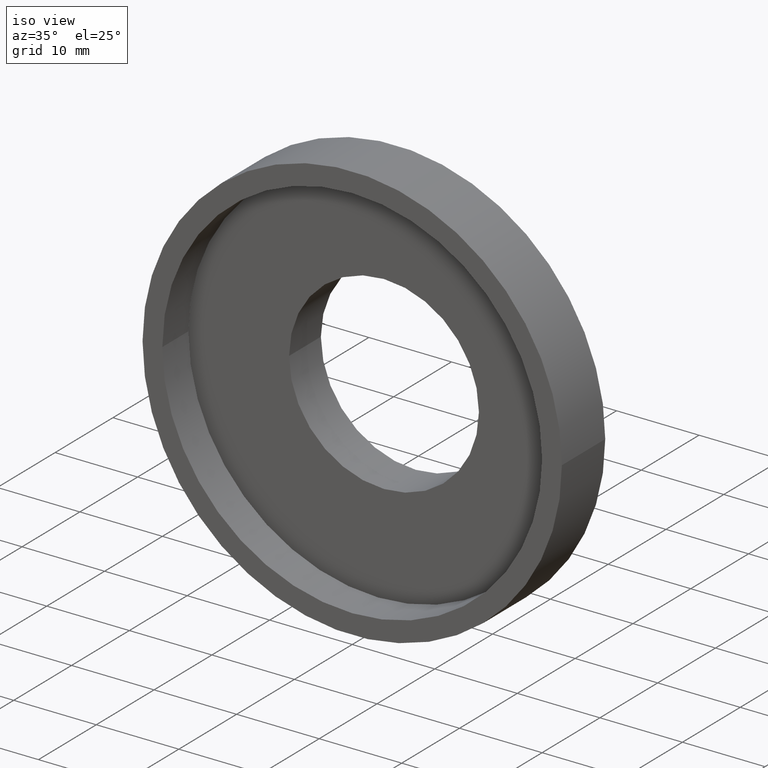
[diagram: clean part render]
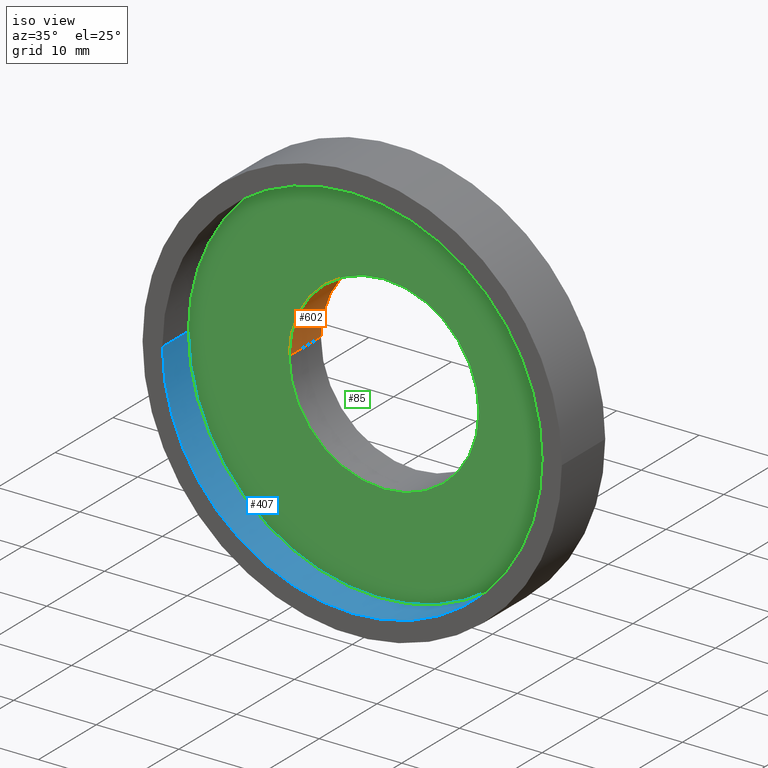
[diagram: same view with three faces highlighted in distinct colors, each labeled with its STEP entity id]
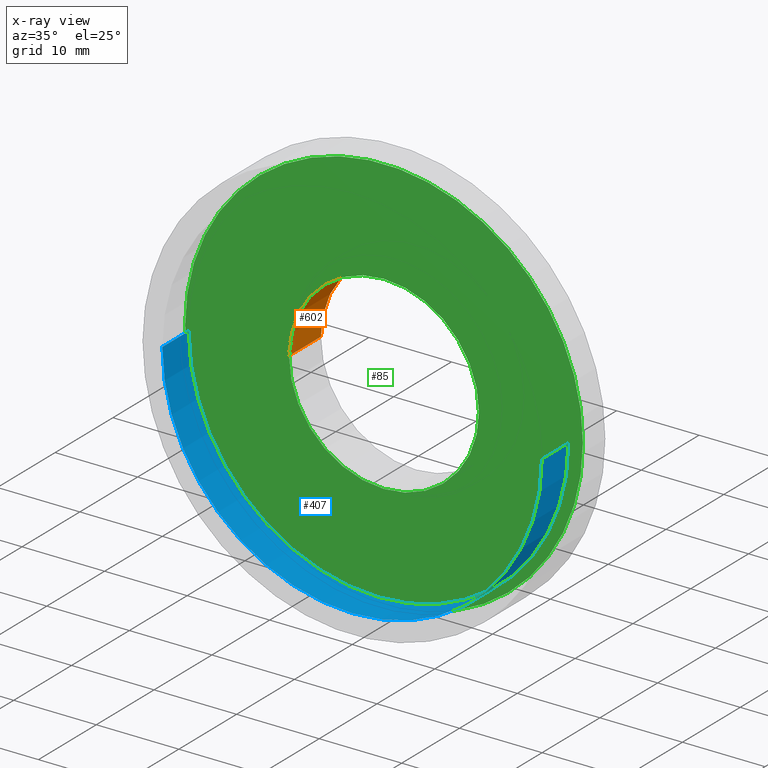
[diagram: x-ray of the same camera — body ghosted, the three highlighted faces saturated]
A machine part, iso view with three faces highlighted in distinct colors.
The next image is the same camera in x-ray (body ghosted, the three faces saturated) — at least one of them is partly hidden behind the body in this view.
Their STEP definitions:

[orange] entity #602 — the highlighted cylindrical surface (partial cylindrical patch) has radius 11.5 mm, axis along (-0, 1, -0).
#2 = CARTESIAN_POINT ( 'NONE',  ( 11.50000000000000000, 16.88601823708207700, 1.408343819019456200E-015 ) ) ;
#9 = EDGE_LOOP ( 'NONE', ( #133, #549, #48, #330 ) ) ;
#48 = ORIENTED_EDGE ( 'NONE', *, *, #95, .T. ) ;
#78 = VECTOR ( 'NONE', #420, 1000.000000000000000 ) ;
#79 = CARTESIAN_POINT ( 'NONE',  ( -11.50000000000000200, 10.99999999999999500, 0.0000000000000000000 ) ) ;
#95 = EDGE_CURVE ( 'NONE', #160, #532, #121, .T. ) ;
#96 = VERTEX_POINT ( 'NONE', #371 ) ;
#121 = LINE ( 'NONE', #417, #78 ) ;
#133 = ORIENTED_EDGE ( 'NONE', *, *, #340, .F. ) ;
#141 = CIRCLE ( 'NONE', #149, 11.50000000000000200 ) ;
#149 = AXIS2_PLACEMENT_3D ( 'NONE', #539, #389, #405 ) ;
#155 = CARTESIAN_POINT ( 'NONE',  ( 0.0000000000000000000, 16.88601823708207700, 0.0000000000000000000 ) ) ;
#160 = VERTEX_POINT ( 'NONE', #181 ) ;
#166 = CYLINDRICAL_SURFACE ( 'NONE', #464, 11.50000000000000000 ) ;
#181 = CARTESIAN_POINT ( 'NONE',  ( -11.49999999999999800, 5.499999999999996400, 0.0000000000000000000 ) ) ;
#230 = EDGE_CURVE ( 'NONE', #160, #96, #237, .T. ) ;
#237 = CIRCLE ( 'NONE', #468, 11.50000000000000000 ) ;
#266 = DIRECTION ( 'NONE',  ( -1.224646799147351000E-016, 1.000000000000000000, -0.0000000000000000000 ) ) ;
#330 = ORIENTED_EDGE ( 'NONE', *, *, #527, .T. ) ;
#331 = DIRECTION ( 'NONE',  ( -1.224646799147351000E-016, 1.000000000000000000, -0.0000000000000000000 ) ) ;
#340 = EDGE_CURVE ( 'NONE', #96, #418, #613, .T. ) ;
#357 = CARTESIAN_POINT ( 'NONE',  ( 1.394385078907593000E-015, 5.499999999999998200, 0.0000000000000000000 ) ) ;
#371 = CARTESIAN_POINT ( 'NONE',  ( 11.50000000000000200, 5.500000000000000000, 1.408343819019456600E-015 ) ) ;
#389 = DIRECTION ( 'NONE',  ( -1.224646799147351000E-016, 1.000000000000000000, -0.0000000000000000000 ) ) ;
#405 = DIRECTION ( 'NONE',  ( -1.000000000000000000, -1.508455196501571200E-016, 0.0000000000000000000 ) ) ;
#414 = VECTOR ( 'NONE', #331, 1000.000000000000000 ) ;
#417 = CARTESIAN_POINT ( 'NONE',  ( -11.50000000000000000, 16.88601823708207700, 0.0000000000000000000 ) ) ;
#418 = VERTEX_POINT ( 'NONE', #589 ) ;
#420 = DIRECTION ( 'NONE',  ( -1.224646799147351000E-016, 1.000000000000000000, -0.0000000000000000000 ) ) ;
#464 = AXIS2_PLACEMENT_3D ( 'NONE', #155, #491, #587 ) ;
#465 = DIRECTION ( 'NONE',  ( -1.000000000000000000, -1.508455196501571400E-016, 0.0000000000000000000 ) ) ;
#468 = AXIS2_PLACEMENT_3D ( 'NONE', #357, #266, #465 ) ;
#491 = DIRECTION ( 'NONE',  ( -1.224646799147351000E-016, 1.000000000000000000, -0.0000000000000000000 ) ) ;
#527 = EDGE_CURVE ( 'NONE', #532, #418, #141, .T. ) ;
#532 = VERTEX_POINT ( 'NONE', #79 ) ;
#539 = CARTESIAN_POINT ( 'NONE',  ( 7.208293393765502500E-016, 10.99999999999999600, 0.0000000000000000000 ) ) ;
#549 = ORIENTED_EDGE ( 'NONE', *, *, #230, .F. ) ;
#572 = FACE_OUTER_BOUND ( 'NONE', #9, .T. ) ;
#587 = DIRECTION ( 'NONE',  ( -1.000000000000000000, 0.0000000000000000000, 0.0000000000000000000 ) ) ;
#589 = CARTESIAN_POINT ( 'NONE',  ( 11.50000000000000200, 10.99999999999999800, 1.408343819019456600E-015 ) ) ;
#602 = ADVANCED_FACE ( 'NONE', ( #572 ), #166, .F. ) ;
#613 = LINE ( 'NONE', #2, #414 ) ;

[blue] entity #407 — the highlighted cylindrical surface (partial cylindrical patch) has radius 23 mm, axis along (-0, 1, -0).
#58 = CARTESIAN_POINT ( 'NONE',  ( 0.0000000000000000000, 16.88601823708207700, 0.0000000000000000000 ) ) ;
#59 = CARTESIAN_POINT ( 'NONE',  ( -23.00000000000000400, 4.499999999999994700, 0.0000000000000000000 ) ) ;
#86 = EDGE_CURVE ( 'NONE', #190, #489, #410, .T. ) ;
#130 = EDGE_CURVE ( 'NONE', #190, #150, #598, .T. ) ;
#135 = CARTESIAN_POINT ( 'NONE',  ( 23.00000000000000000, 16.88601823708208000, 2.816687638038912400E-015 ) ) ;
#142 = ORIENTED_EDGE ( 'NONE', *, *, #86, .F. ) ;
#150 = VERTEX_POINT ( 'NONE', #344 ) ;
#151 = CARTESIAN_POINT ( 'NONE',  ( 1.516849758822328300E-015, 4.499999999999997300, 0.0000000000000000000 ) ) ;
#163 = DIRECTION ( 'NONE',  ( -1.000000000000000000, -1.508455196501571400E-016, 0.0000000000000000000 ) ) ;
#183 = FACE_OUTER_BOUND ( 'NONE', #253, .T. ) ;
#190 = VERTEX_POINT ( 'NONE', #203 ) ;
#203 = CARTESIAN_POINT ( 'NONE',  ( 23.00000000000000000, -6.527593139147072600E-016, 2.816687638038912400E-015 ) ) ;
#222 = LINE ( 'NONE', #603, #366 ) ;
#243 = EDGE_CURVE ( 'NONE', #489, #526, #222, .T. ) ;
#246 = ORIENTED_EDGE ( 'NONE', *, *, #243, .F. ) ;
#253 = EDGE_LOOP ( 'NONE', ( #142, #570, #280, #246 ) ) ;
#279 = DIRECTION ( 'NONE',  ( -1.000000000000000000, -1.224646799147351000E-016, 0.0000000000000000000 ) ) ;
#280 = ORIENTED_EDGE ( 'NONE', *, *, #316, .T. ) ;
#311 = DIRECTION ( 'NONE',  ( -1.224646799147351000E-016, 1.000000000000000000, -0.0000000000000000000 ) ) ;
#316 = EDGE_CURVE ( 'NONE', #150, #526, #543, .T. ) ;
#323 = CARTESIAN_POINT ( 'NONE',  ( 2.067940818438636500E-015, -3.469446951953614200E-015, 0.0000000000000000000 ) ) ;
#329 = AXIS2_PLACEMENT_3D ( 'NONE', #151, #388, #434 ) ;
#344 = CARTESIAN_POINT ( 'NONE',  ( 23.00000000000000400, 4.500000000000000000, 2.816687638038913100E-015 ) ) ;
#366 = VECTOR ( 'NONE', #311, 1000.000000000000000 ) ;
#382 = AXIS2_PLACEMENT_3D ( 'NONE', #58, #482, #163 ) ;
#388 = DIRECTION ( 'NONE',  ( -1.224646799147351000E-016, 1.000000000000000000, -0.0000000000000000000 ) ) ;
#407 = ADVANCED_FACE ( 'NONE', ( #183 ), #614, .F. ) ;
#410 = CIRCLE ( 'NONE', #528, 22.99999999999999600 ) ;
#423 = DIRECTION ( 'NONE',  ( -1.224646799147351000E-016, 1.000000000000000000, -0.0000000000000000000 ) ) ;
#434 = DIRECTION ( 'NONE',  ( -1.000000000000000000, -1.131341397376178300E-016, 0.0000000000000000000 ) ) ;
#449 = CARTESIAN_POINT ( 'NONE',  ( -22.99999999999999300, -6.286134589992521000E-015, 0.0000000000000000000 ) ) ;
#471 = VECTOR ( 'NONE', #615, 1000.000000000000000 ) ;
#482 = DIRECTION ( 'NONE',  ( -1.224646799147351000E-016, 1.000000000000000000, -0.0000000000000000000 ) ) ;
#489 = VERTEX_POINT ( 'NONE', #449 ) ;
#526 = VERTEX_POINT ( 'NONE', #59 ) ;
#528 = AXIS2_PLACEMENT_3D ( 'NONE', #323, #423, #279 ) ;
#543 = CIRCLE ( 'NONE', #329, 23.00000000000000400 ) ;
#570 = ORIENTED_EDGE ( 'NONE', *, *, #130, .T. ) ;
#598 = LINE ( 'NONE', #135, #471 ) ;
#603 = CARTESIAN_POINT ( 'NONE',  ( -23.00000000000000000, 16.88601823708207300, 0.0000000000000000000 ) ) ;
#614 = CYLINDRICAL_SURFACE ( 'NONE', #382, 23.00000000000000000 ) ;
#615 = DIRECTION ( 'NONE',  ( -1.224646799147351000E-016, 1.000000000000000000, -0.0000000000000000000 ) ) ;

[green] entity #85 — the highlighted planar face has unit normal (-0, 1, 0).
#12 = CARTESIAN_POINT ( 'NONE',  ( 1.394385078907593200E-015, 5.499999999999996400, 0.0000000000000000000 ) ) ;
#73 = DIRECTION ( 'NONE',  ( -1.000000000000000000, -1.079703408284319800E-016, 0.0000000000000000000 ) ) ;
#85 = ADVANCED_FACE ( 'NONE', ( #332, #91 ), #179, .F. ) ;
#91 = FACE_BOUND ( 'NONE', #513, .T. ) ;
#96 = VERTEX_POINT ( 'NONE', #371 ) ;
#110 = CARTESIAN_POINT ( 'NONE',  ( 1.394385078907593000E-015, 5.499999999999998200, 0.0000000000000000000 ) ) ;
#119 = CIRCLE ( 'NONE', #422, 24.10000000000000100 ) ;
#131 = EDGE_CURVE ( 'NONE', #466, #569, #438, .T. ) ;
#137 = DIRECTION ( 'NONE',  ( -1.000000000000000000, -1.224646799147351000E-016, 0.0000000000000000000 ) ) ;
#160 = VERTEX_POINT ( 'NONE', #181 ) ;
#179 = PLANE ( 'NONE',  #494 ) ;
#181 = CARTESIAN_POINT ( 'NONE',  ( -11.49999999999999800, 5.499999999999996400, 0.0000000000000000000 ) ) ;
#189 = ORIENTED_EDGE ( 'NONE', *, *, #131, .F. ) ;
#200 = EDGE_LOOP ( 'NONE', ( #520, #189 ) ) ;
#226 = DIRECTION ( 'NONE',  ( -1.224646799147351000E-016, 1.000000000000000000, 0.0000000000000000000 ) ) ;
#230 = EDGE_CURVE ( 'NONE', #160, #96, #237, .T. ) ;
#237 = CIRCLE ( 'NONE', #468, 11.50000000000000000 ) ;
#266 = DIRECTION ( 'NONE',  ( -1.224646799147351000E-016, 1.000000000000000000, -0.0000000000000000000 ) ) ;
#301 = DIRECTION ( 'NONE',  ( -1.224646799147351000E-016, 1.000000000000000000, -0.0000000000000000000 ) ) ;
#305 = DIRECTION ( 'NONE',  ( -1.224646799147351000E-016, 1.000000000000000000, -0.0000000000000000000 ) ) ;
#322 = CARTESIAN_POINT ( 'NONE',  ( -24.10000000000000100, 5.499999999999993800, 0.0000000000000000000 ) ) ;
#332 = FACE_OUTER_BOUND ( 'NONE', #200, .T. ) ;
#334 = EDGE_CURVE ( 'NONE', #96, #160, #518, .T. ) ;
#355 = ORIENTED_EDGE ( 'NONE', *, *, #230, .T. ) ;
#357 = CARTESIAN_POINT ( 'NONE',  ( 1.394385078907593000E-015, 5.499999999999998200, 0.0000000000000000000 ) ) ;
#371 = CARTESIAN_POINT ( 'NONE',  ( 11.50000000000000200, 5.500000000000000000, 1.408343819019456600E-015 ) ) ;
#422 = AXIS2_PLACEMENT_3D ( 'NONE', #541, #301, #452 ) ;
#424 = EDGE_CURVE ( 'NONE', #569, #466, #119, .T. ) ;
#438 = CIRCLE ( 'NONE', #605, 24.10000000000000100 ) ;
#439 = DIRECTION ( 'NONE',  ( -1.224646799147351000E-016, 1.000000000000000000, -0.0000000000000000000 ) ) ;
#452 = DIRECTION ( 'NONE',  ( -1.000000000000000000, -1.079703408284319800E-016, 0.0000000000000000000 ) ) ;
#465 = DIRECTION ( 'NONE',  ( -1.000000000000000000, -1.508455196501571400E-016, 0.0000000000000000000 ) ) ;
#466 = VERTEX_POINT ( 'NONE', #501 ) ;
#468 = AXIS2_PLACEMENT_3D ( 'NONE', #357, #266, #465 ) ;
#486 = DIRECTION ( 'NONE',  ( -1.000000000000000000, -1.508455196501571400E-016, 0.0000000000000000000 ) ) ;
#494 = AXIS2_PLACEMENT_3D ( 'NONE', #617, #226, #137 ) ;
#501 = CARTESIAN_POINT ( 'NONE',  ( 24.10000000000000100, 5.499999999999999100, 2.951398785945121300E-015 ) ) ;
#513 = EDGE_LOOP ( 'NONE', ( #355, #535 ) ) ;
#518 = CIRCLE ( 'NONE', #557, 11.50000000000000000 ) ;
#520 = ORIENTED_EDGE ( 'NONE', *, *, #424, .F. ) ;
#535 = ORIENTED_EDGE ( 'NONE', *, *, #334, .T. ) ;
#541 = CARTESIAN_POINT ( 'NONE',  ( 1.394385078907593200E-015, 5.499999999999996400, 0.0000000000000000000 ) ) ;
#557 = AXIS2_PLACEMENT_3D ( 'NONE', #110, #439, #486 ) ;
#569 = VERTEX_POINT ( 'NONE', #322 ) ;
#605 = AXIS2_PLACEMENT_3D ( 'NONE', #12, #305, #73 ) ;
#617 = CARTESIAN_POINT ( 'NONE',  ( 11.50000000000000200, 5.499999999999999100, 0.0000000000000000000 ) ) ;